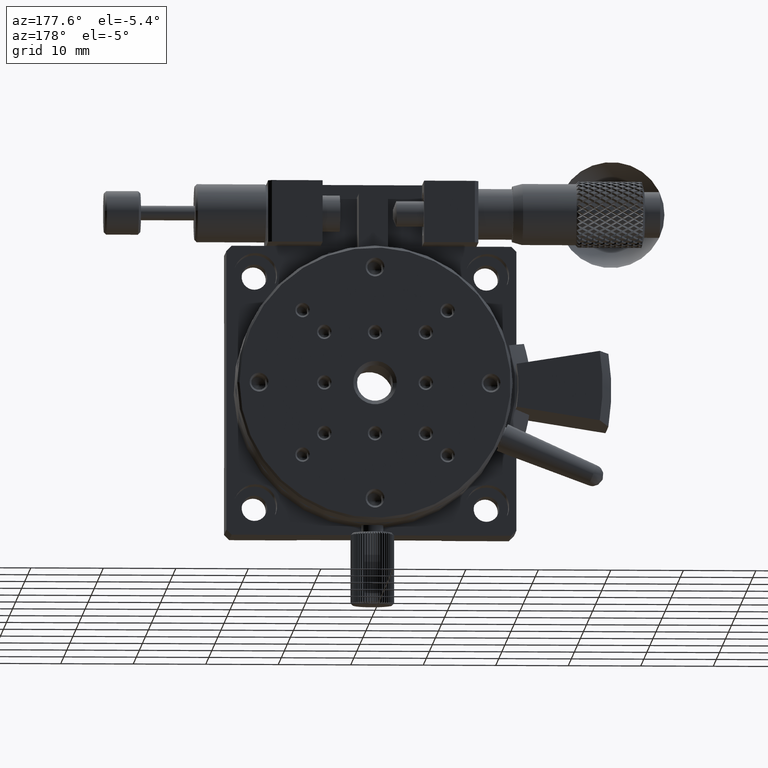
[diagram: clean part render]
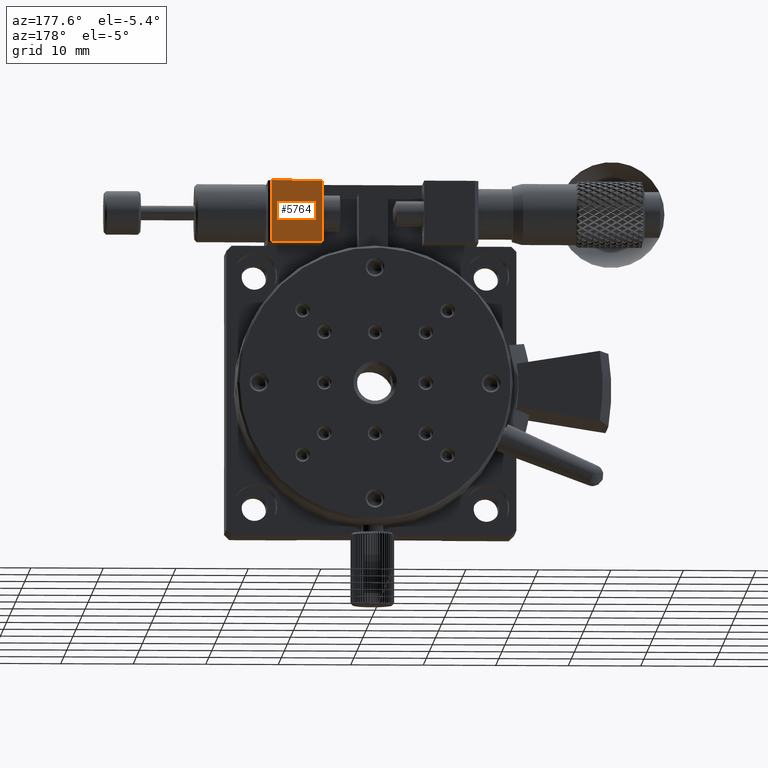
[diagram: same view with one face highlighted and labeled with its STEP entity id]
A machine part, auxiliary view. The second image highlights one B-rep face of the part: STEP entity #5764.
In plain terms, the highlighted planar face has unit normal (0, -1, 0).
Its self-contained STEP definition (entity closure, byte-faithful):
#5764 = ADVANCED_FACE ( 'NONE', ( #14700 ), #7705, .F. ) ;
#7705 = PLANE ( 'NONE',  #15034 ) ;
#8620 = DIRECTION ( 'NONE',  ( 0.000000000000000000, -1.000000000000000000, 0.000000000000000000 ) ) ;
#9595 = DIRECTION ( 'NONE',  ( -0.000000000000000000, 0.000000000000000000, 1.000000000000000000 ) ) ;
#10072 = LINE ( 'NONE', #18000, #42717 ) ;
#11688 = VERTEX_POINT ( 'NONE', #49345 ) ;
#14700 = FACE_OUTER_BOUND ( 'NONE', #77851, .T. ) ;
#15034 = AXIS2_PLACEMENT_3D ( 'NONE', #56690, #8620, #85173 ) ;
#16317 = ORIENTED_EDGE ( 'NONE', *, *, #22319, .T. ) ;
#18000 = CARTESIAN_POINT ( 'NONE',  ( 34.00000000000000000, 14.50000000000000000, 0.000000000000000000 ) ) ;
#22319 = EDGE_CURVE ( 'NONE', #83387, #22807, #77326, .T. ) ;
#22807 = VERTEX_POINT ( 'NONE', #60692 ) ;
#27209 = DIRECTION ( 'NONE',  ( -1.000000000000000000, -0.000000000000000000, 0.000000000000000000 ) ) ;
#38551 = DIRECTION ( 'NONE',  ( 1.000000000000000000, 0.000000000000000000, 0.000000000000000000 ) ) ;
#40120 = EDGE_CURVE ( 'NONE', #83387, #59709, #10072, .T. ) ;
#42125 = LINE ( 'NONE', #91118, #85940 ) ;
#42376 = CARTESIAN_POINT ( 'NONE',  ( 34.00000000000000000, 14.49999999999999822, 0.000000000000000000 ) ) ;
#42717 = VECTOR ( 'NONE', #38551, 1000.000000000000000 ) ;
#46071 = ORIENTED_EDGE ( 'NONE', *, *, #69527, .F. ) ;
#48859 = DIRECTION ( 'NONE',  ( -0.000000000000000000, 0.000000000000000000, 1.000000000000000000 ) ) ;
#49345 = CARTESIAN_POINT ( 'NONE',  ( 34.00000000000000000, 14.50000000000000000, 8.500000000000000000 ) ) ;
#55563 = VECTOR ( 'NONE', #48859, 1000.000000000000000 ) ;
#56690 = CARTESIAN_POINT ( 'NONE',  ( 34.00000000000000000, 14.50000000000000000, 8.500000000000000000 ) ) ;
#57639 = VECTOR ( 'NONE', #9595, 1000.000000000000000 ) ;
#59285 = CARTESIAN_POINT ( 'NONE',  ( 27.00000000000000000, 14.50000000000000000, 0.000000000000000000 ) ) ;
#59709 = VERTEX_POINT ( 'NONE', #42376 ) ;
#60692 = CARTESIAN_POINT ( 'NONE',  ( 27.00000000000000000, 14.50000000000000000, 8.500000000000000000 ) ) ;
#69527 = EDGE_CURVE ( 'NONE', #59709, #11688, #90187, .T. ) ;
#76179 = ORIENTED_EDGE ( 'NONE', *, *, #40120, .F. ) ;
#76285 = EDGE_CURVE ( 'NONE', #11688, #22807, #42125, .T. ) ;
#77326 = LINE ( 'NONE', #92236, #55563 ) ;
#77851 = EDGE_LOOP ( 'NONE', ( #16317, #79358, #46071, #76179 ) ) ;
#79358 = ORIENTED_EDGE ( 'NONE', *, *, #76285, .F. ) ;
#83189 = CARTESIAN_POINT ( 'NONE',  ( 34.00000000000000000, 14.50000000000000000, 8.500000000000000000 ) ) ;
#83387 = VERTEX_POINT ( 'NONE', #59285 ) ;
#85173 = DIRECTION ( 'NONE',  ( 0.000000000000000000, -0.000000000000000000, -1.000000000000000000 ) ) ;
#85940 = VECTOR ( 'NONE', #27209, 1000.000000000000000 ) ;
#90187 = LINE ( 'NONE', #83189, #57639 ) ;
#91118 = CARTESIAN_POINT ( 'NONE',  ( 0.000000000000000000, 14.50000000000000000, 8.500000000000000000 ) ) ;
#92236 = CARTESIAN_POINT ( 'NONE',  ( 27.00000000000000000, 14.50000000000000000, 8.500000000000000000 ) ) ;